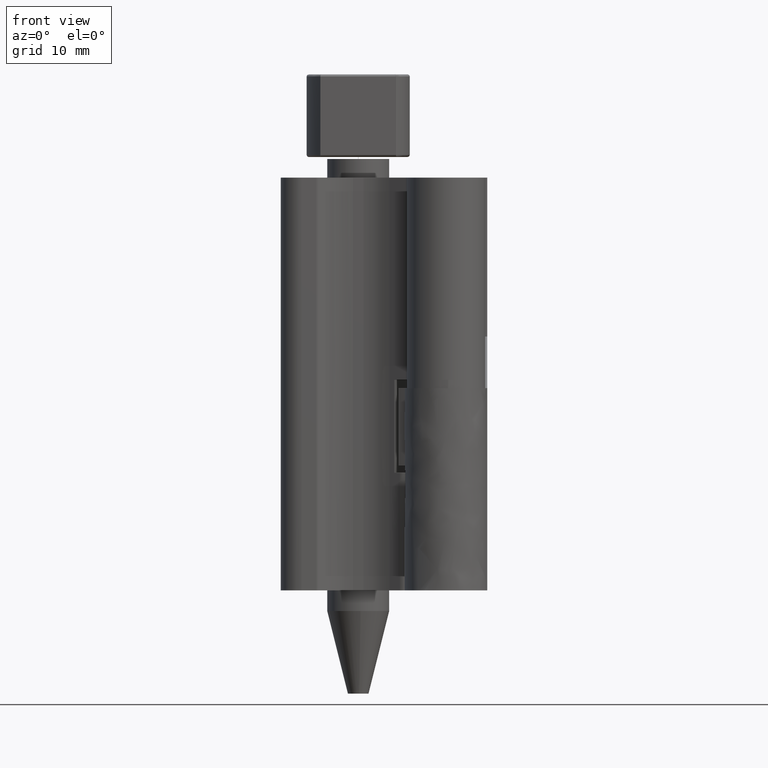
[diagram: clean part render]
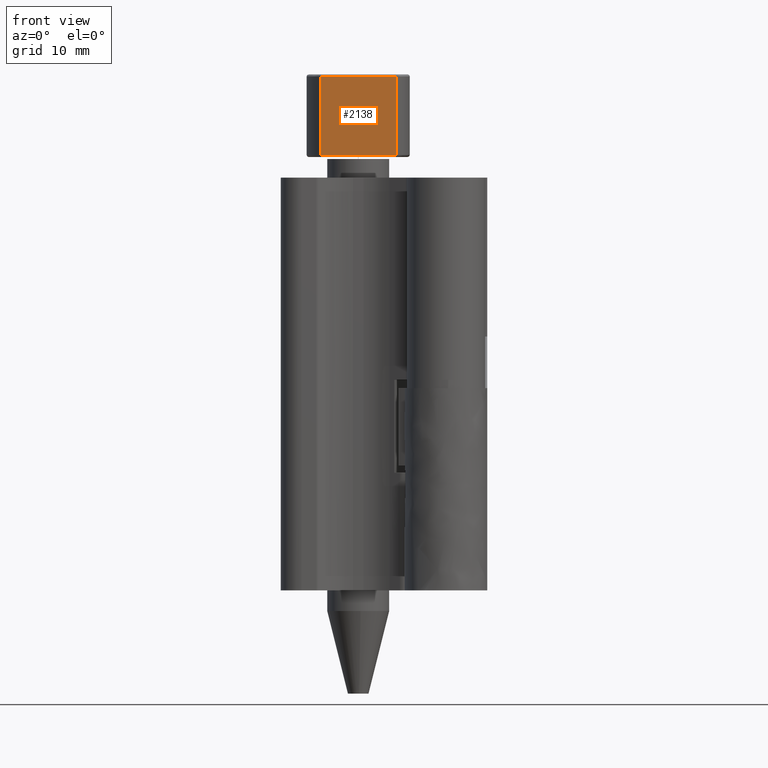
[diagram: same view with one face highlighted and labeled with its STEP entity id]
A machine part, front view. The second image highlights one B-rep face of the part: STEP entity #2138.
In plain terms, the highlighted face is a freeform B-spline surface patch.
Its self-contained STEP definition (entity closure, byte-faithful):
#1853=CARTESIAN_POINT('',(-4.833923647777421,7.600017589578980,49.800002374872697));
#1854=VERTEX_POINT('',#1853);
#1881=CARTESIAN_POINT('',(-12.166077064314701,7.600017589579100,49.800002374872697));
#1882=VERTEX_POINT('',#1881);
#1900=CARTESIAN_POINT('',(-4.833923647777421,7.600017589578980,49.800002374872697));
#1901=CARTESIAN_POINT('',(-12.166077064314701,7.600017589579100,49.800002374872697));
#1902=QUASI_UNIFORM_CURVE('',1,(#1900,#1901),.UNSPECIFIED.,.F.,.U.);
#1903=EDGE_CURVE('',#1854,#1882,#1902,.T.);
#1992=CARTESIAN_POINT('',(-4.833923647777421,7.600017589578980,42.200002009970753));
#1993=VERTEX_POINT('',#1992);
#2011=CARTESIAN_POINT('',(-12.166077064314701,7.600017589579100,42.200002009970753));
#2012=VERTEX_POINT('',#2011);
#2013=CARTESIAN_POINT('',(-12.166077064314701,7.600017589579100,42.200002009970753));
#2014=CARTESIAN_POINT('',(-4.833923647777421,7.600017589578980,42.200002009970753));
#2015=QUASI_UNIFORM_CURVE('',1,(#2013,#2014),.UNSPECIFIED.,.F.,.U.);
#2016=EDGE_CURVE('',#2012,#1993,#2015,.T.);
#2119=CARTESIAN_POINT('',(-4.467682762686143,7.600017589578980,41.820380623797682));
#2120=CARTESIAN_POINT('',(-12.532317752742300,7.600017589578980,41.820380623797682));
#2121=CARTESIAN_POINT('',(-4.467682762686143,7.600017589578980,50.179623217451393));
#2122=CARTESIAN_POINT('',(-12.532317752742300,7.600017589578980,50.179623217451393));
#2123=B_SPLINE_SURFACE_WITH_KNOTS('',1,1,((#2119,#2121),(#2120,#2122)),.UNSPECIFIED.,.F.,.F.,.U.,(2,2),(2,2),(0.0,8.064634990056160),(0.0,8.359242593653704),.UNSPECIFIED.);
#2124=CARTESIAN_POINT('',(-12.166077064314701,7.600017589579100,42.200002009970753));
#2125=CARTESIAN_POINT('',(-12.166077064314701,7.600017589579100,49.800002374872697));
#2126=QUASI_UNIFORM_CURVE('',1,(#2124,#2125),.UNSPECIFIED.,.F.,.U.);
#2127=EDGE_CURVE('',#2012,#1882,#2126,.T.);
#2128=ORIENTED_EDGE('',*,*,#2127,.F.);
#2129=ORIENTED_EDGE('',*,*,#2016,.T.);
#2130=CARTESIAN_POINT('',(-4.833923647777421,7.600017589578980,42.200002009970753));
#2131=CARTESIAN_POINT('',(-4.833923647777421,7.600017589578980,49.800002374872697));
#2132=QUASI_UNIFORM_CURVE('',1,(#2130,#2131),.UNSPECIFIED.,.F.,.U.);
#2133=EDGE_CURVE('',#1993,#1854,#2132,.T.);
#2134=ORIENTED_EDGE('',*,*,#2133,.T.);
#2135=ORIENTED_EDGE('',*,*,#1903,.T.);
#2136=EDGE_LOOP('',(#2128,#2129,#2134,#2135));
#2137=FACE_OUTER_BOUND('',#2136,.T.);
#2138=ADVANCED_FACE('',(#2137),#2123,.F.);